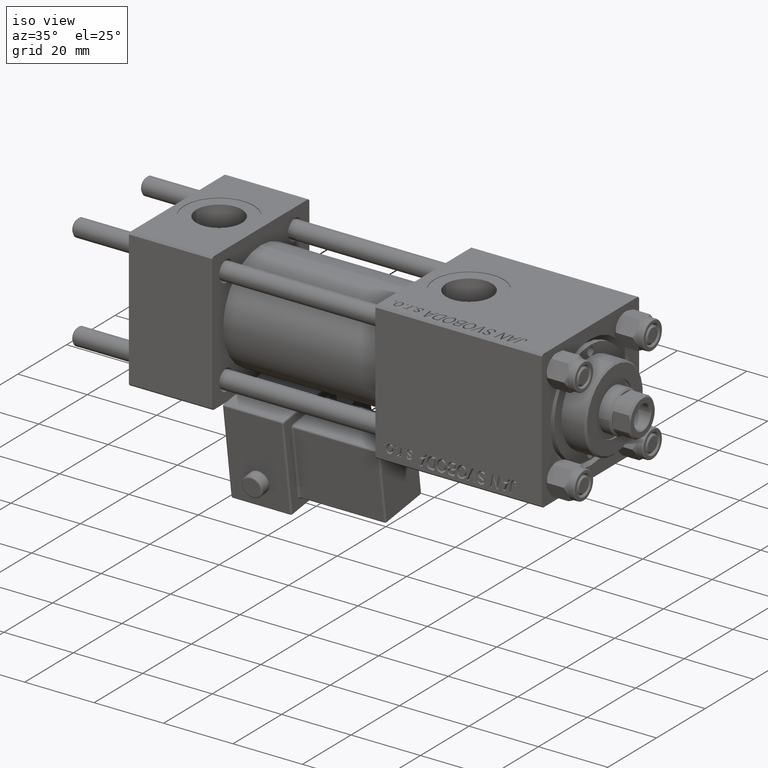
[diagram: clean part render]
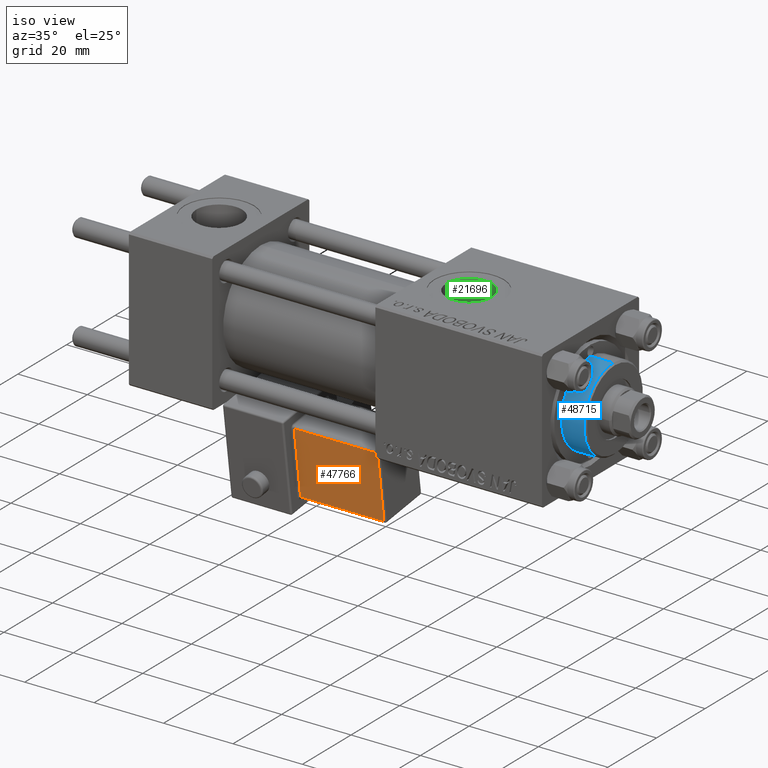
[diagram: same view with three faces highlighted in distinct colors, each labeled with its STEP entity id]
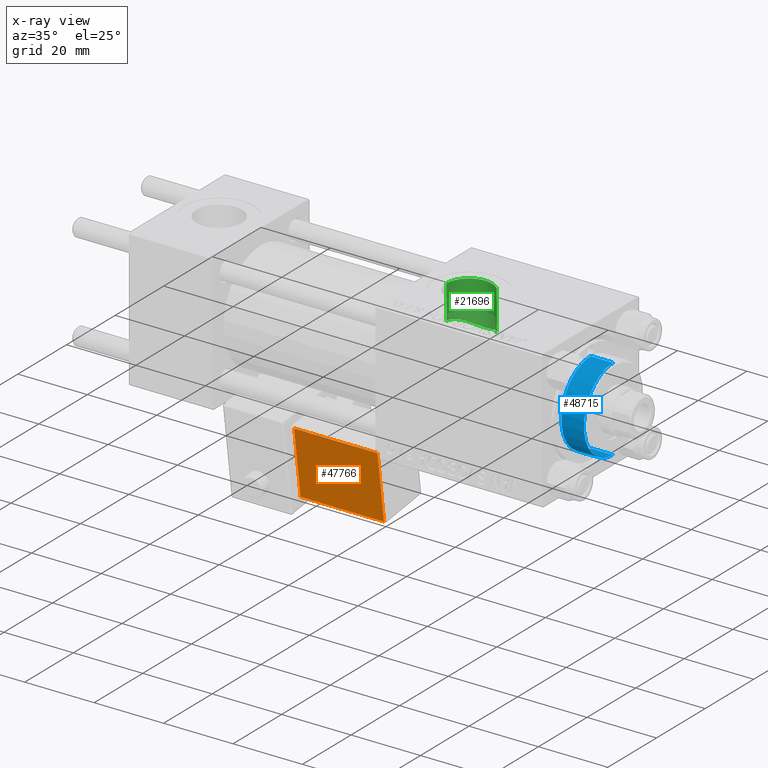
[diagram: x-ray of the same camera — body ghosted, the three highlighted faces saturated]
A machine part, iso view with three faces highlighted in distinct colors.
The next image is the same camera in x-ray (body ghosted, the three faces saturated) — at least one of them is partly hidden behind the body in this view.
Their STEP definitions:

[orange] entity #47766 — the highlighted planar face has unit normal (0, 0.9902, 0.1399).
#112 = DIRECTION ( 'NONE',  ( -1.734723475976807341E-16, 1.734723475976807341E-16, 1.000000000000000000 ) ) ;
#1661 = VERTEX_POINT ( 'NONE', #33195 ) ;
#2669 = LINE ( 'NONE', #19827, #42650 ) ;
#4822 = DIRECTION ( 'NONE',  ( 1.334402673828313339E-16, -1.734723475976807341E-16, -1.000000000000000000 ) ) ;
#7664 = VERTEX_POINT ( 'NONE', #28485 ) ;
#8300 = EDGE_CURVE ( 'NONE', #7664, #12023, #16814, .T. ) ;
#8929 = CARTESIAN_POINT ( 'NONE',  ( 9.250000000000005329, -29.25000000000000000, 1.999999999999998224 ) ) ;
#9965 = LINE ( 'NONE', #43979, #19017 ) ;
#11186 = EDGE_CURVE ( 'NONE', #12023, #1661, #2669, .T. ) ;
#12023 = VERTEX_POINT ( 'NONE', #20913 ) ;
#14294 = ORIENTED_EDGE ( 'NONE', *, *, #26819, .T. ) ;
#16814 = LINE ( 'NONE', #8929, #24453 ) ;
#19017 = VECTOR ( 'NONE', #40191, 1000.000000000000000 ) ;
#19827 = CARTESIAN_POINT ( 'NONE',  ( 33.75000000000000000, -29.25000000000000000, 2.500000000000002220 ) ) ;
#20821 = LINE ( 'NONE', #37466, #50051 ) ;
#20913 = CARTESIAN_POINT ( 'NONE',  ( 9.250000000000005329, -29.25000000000000000, 2.499999999999999556 ) ) ;
#20923 = CARTESIAN_POINT ( 'NONE',  ( 33.75000000000000000, -29.24999999999999645, 22.00000000000000000 ) ) ;
#24453 = VECTOR ( 'NONE', #4822, 1000.000000000000000 ) ;
#25284 = DIRECTION ( 'NONE',  ( 2.314819644696197507E-32, 1.000000000000000000, -1.734723475976807341E-16 ) ) ;
#26819 = EDGE_CURVE ( 'NONE', #1661, #49958, #20821, .T. ) ;
#28304 = FACE_OUTER_BOUND ( 'NONE', #50161, .T. ) ;
#28485 = CARTESIAN_POINT ( 'NONE',  ( 9.250000000000001776, -29.24999999999999645, 21.49999999999999645 ) ) ;
#29378 = DIRECTION ( 'NONE',  ( 0.000000000000000000, 1.734723475976807341E-16, 1.000000000000000000 ) ) ;
#32935 = PLANE ( 'NONE',  #40779 ) ;
#33195 = CARTESIAN_POINT ( 'NONE',  ( 33.24999999999999289, -29.25000000000000000, 2.500000000000003109 ) ) ;
#33969 = ORIENTED_EDGE ( 'NONE', *, *, #8300, .T. ) ;
#37466 = CARTESIAN_POINT ( 'NONE',  ( 33.24999999999999289, -29.24999999999999645, 22.00000000000000000 ) ) ;
#39204 = CARTESIAN_POINT ( 'NONE',  ( 33.24999999999999289, -29.24999999999999645, 21.50000000000000000 ) ) ;
#40191 = DIRECTION ( 'NONE',  ( -1.000000000000000000, 0.000000000000000000, -1.334402673828313339E-16 ) ) ;
#40302 = ORIENTED_EDGE ( 'NONE', *, *, #48446, .T. ) ;
#40779 = AXIS2_PLACEMENT_3D ( 'NONE', #20923, #25284, #29378 ) ;
#42404 = ORIENTED_EDGE ( 'NONE', *, *, #11186, .T. ) ;
#42650 = VECTOR ( 'NONE', #45423, 1000.000000000000000 ) ;
#43979 = CARTESIAN_POINT ( 'NONE',  ( 33.75000000000000000, -29.24999999999999645, 21.50000000000000000 ) ) ;
#45423 = DIRECTION ( 'NONE',  ( 1.000000000000000000, -0.000000000000000000, 1.334402673828313339E-16 ) ) ;
#47766 = ADVANCED_FACE ( 'NONE', ( #28304 ), #32935, .F. ) ;
#48446 = EDGE_CURVE ( 'NONE', #49958, #7664, #9965, .T. ) ;
#49958 = VERTEX_POINT ( 'NONE', #39204 ) ;
#50051 = VECTOR ( 'NONE', #112, 1000.000000000000000 ) ;
#50161 = EDGE_LOOP ( 'NONE', ( #33969, #42404, #14294, #40302 ) ) ;

[blue] entity #48715 — the highlighted cylindrical surface (partial cylindrical patch) has radius 12 mm, axis along (-1, -0, 0).
#346 = DIRECTION ( 'NONE',  ( -0.000000000000000000, -0.000000000000000000, -1.000000000000000000 ) ) ;
#428 = CIRCLE ( 'NONE', #1303, 12.00000000000000178 ) ;
#1303 = AXIS2_PLACEMENT_3D ( 'NONE', #44133, #6818, #2720 ) ;
#2326 = CARTESIAN_POINT ( 'NONE',  ( -12.00000000000000178, 0.000000000000000000, 35.19999999999999574 ) ) ;
#2720 = DIRECTION ( 'NONE',  ( 1.000000000000000000, 0.000000000000000000, 0.000000000000000000 ) ) ;
#4409 = AXIS2_PLACEMENT_3D ( 'NONE', #48252, #11757, #10955 ) ;
#5266 = CARTESIAN_POINT ( 'NONE',  ( 12.00000000000000178, 0.000000000000000000, 28.69999999999999929 ) ) ;
#6518 = ORIENTED_EDGE ( 'NONE', *, *, #12846, .T. ) ;
#6818 = DIRECTION ( 'NONE',  ( 0.000000000000000000, 0.000000000000000000, -1.000000000000000000 ) ) ;
#7415 = CARTESIAN_POINT ( 'NONE',  ( 12.00000000000000178, 1.469576158976824144E-15, 35.70000000000000284 ) ) ;
#8210 = LINE ( 'NONE', #7415, #52621 ) ;
#10955 = DIRECTION ( 'NONE',  ( 1.000000000000000000, 0.000000000000000000, 0.000000000000000000 ) ) ;
#11757 = DIRECTION ( 'NONE',  ( 0.000000000000000000, 0.000000000000000000, 1.000000000000000000 ) ) ;
#11861 = LINE ( 'NONE', #20552, #48378 ) ;
#12846 = EDGE_CURVE ( 'NONE', #18746, #25164, #45327, .T. ) ;
#18746 = VERTEX_POINT ( 'NONE', #50673 ) ;
#19229 = ORIENTED_EDGE ( 'NONE', *, *, #31679, .T. ) ;
#20552 = CARTESIAN_POINT ( 'NONE',  ( -12.00000000000000178, 0.000000000000000000, 35.70000000000000284 ) ) ;
#22533 = AXIS2_PLACEMENT_3D ( 'NONE', #51496, #346, #37965 ) ;
#24112 = DIRECTION ( 'NONE',  ( -0.000000000000000000, -0.000000000000000000, -1.000000000000000000 ) ) ;
#24168 = ORIENTED_EDGE ( 'NONE', *, *, #36217, .T. ) ;
#25164 = VERTEX_POINT ( 'NONE', #5266 ) ;
#26734 = VERTEX_POINT ( 'NONE', #28320 ) ;
#28029 = ORIENTED_EDGE ( 'NONE', *, *, #35333, .F. ) ;
#28320 = CARTESIAN_POINT ( 'NONE',  ( 12.00000000000000178, 1.469576158976824144E-15, 35.19999999999999574 ) ) ;
#29522 = FACE_OUTER_BOUND ( 'NONE', #47147, .T. ) ;
#31679 = EDGE_CURVE ( 'NONE', #36697, #18746, #11861, .T. ) ;
#35333 = EDGE_CURVE ( 'NONE', #26734, #25164, #8210, .T. ) ;
#36217 = EDGE_CURVE ( 'NONE', #26734, #36697, #428, .T. ) ;
#36697 = VERTEX_POINT ( 'NONE', #2326 ) ;
#37700 = CYLINDRICAL_SURFACE ( 'NONE', #22533, 12.00000000000000178 ) ;
#37965 = DIRECTION ( 'NONE',  ( -1.000000000000000000, 0.000000000000000000, 0.000000000000000000 ) ) ;
#40920 = DIRECTION ( 'NONE',  ( -0.000000000000000000, -0.000000000000000000, -1.000000000000000000 ) ) ;
#44133 = CARTESIAN_POINT ( 'NONE',  ( 0.000000000000000000, 0.000000000000000000, 35.19999999999999574 ) ) ;
#45327 = CIRCLE ( 'NONE', #4409, 12.00000000000000178 ) ;
#47147 = EDGE_LOOP ( 'NONE', ( #28029, #24168, #19229, #6518 ) ) ;
#48252 = CARTESIAN_POINT ( 'NONE',  ( 0.000000000000000000, 0.000000000000000000, 28.69999999999999929 ) ) ;
#48378 = VECTOR ( 'NONE', #24112, 1000.000000000000000 ) ;
#48715 = ADVANCED_FACE ( 'NONE', ( #29522 ), #37700, .T. ) ;
#50673 = CARTESIAN_POINT ( 'NONE',  ( -12.00000000000000178, 0.000000000000000000, 28.69999999999999929 ) ) ;
#51496 = CARTESIAN_POINT ( 'NONE',  ( 0.000000000000000000, 0.000000000000000000, 35.70000000000000284 ) ) ;
#52621 = VECTOR ( 'NONE', #40920, 1000.000000000000000 ) ;

[green] entity #21696 — the highlighted cylindrical surface (edge-blend (fillet) strip) has radius 6.58 mm, axis along (0, 0, -1).
#322 = CARTESIAN_POINT ( 'NONE',  ( 87.89770756635016369, 5.314995828701263747, 8.474223888701592600 ) ) ;
#650 = DIRECTION ( 'NONE',  ( 0.000000000000000000, 0.000000000000000000, -1.000000000000000000 ) ) ;
#981 = EDGE_CURVE ( 'NONE', #23998, #52664, #15490, .T. ) ;
#1151 = CARTESIAN_POINT ( 'NONE',  ( 81.14578869086805923, 5.940907422896437140, 8.047130836318883595 ) ) ;
#1463 = CARTESIAN_POINT ( 'NONE',  ( 77.41999999999846693, -1.734723475976806897E-15, 42.80000000000000426 ) ) ;
#2083 = CARTESIAN_POINT ( 'NONE',  ( 77.78548192684070273, 2.171457386535522005, 9.763238620524230527 ) ) ;
#2303 = CARTESIAN_POINT ( 'NONE',  ( 90.58000000000154728, 0.6482402319151120418, 15.00000000000000000 ) ) ;
#2581 = DIRECTION ( 'NONE',  ( 0.000000000000000000, 0.000000000000000000, -1.000000000000000000 ) ) ;
#2741 = DIRECTION ( 'NONE',  ( -1.000000000000000000, 0.000000000000000000, 0.000000000000000000 ) ) ;
#3272 = DIRECTION ( 'NONE',  ( 0.000000000000000000, 0.000000000000000000, -1.000000000000000000 ) ) ;
#3938 = VERTEX_POINT ( 'NONE', #28808 ) ;
#4415 = CARTESIAN_POINT ( 'NONE',  ( 89.47113332388794049, 3.675278640241169903, 9.305982037814699126 ) ) ;
#4960 = CARTESIAN_POINT ( 'NONE',  ( 90.03413885016284723, 2.653169395164264976, 9.648548488114556676 ) ) ;
#5178 = LINE ( 'NONE', #47380, #47568 ) ;
#6371 = AXIS2_PLACEMENT_3D ( 'NONE', #49029, #3272, #2741 ) ;
#6583 = EDGE_CURVE ( 'NONE', #17008, #21552, #43696, .T. ) ;
#6707 = CARTESIAN_POINT ( 'NONE',  ( 77.61336014068284328, 1.596001079245348286, 9.873755022540338544 ) ) ;
#10218 = ORIENTED_EDGE ( 'NONE', *, *, #981, .T. ) ;
#10769 = EDGE_CURVE ( 'NONE', #12560, #3938, #22633, .T. ) ;
#10807 = CARTESIAN_POINT ( 'NONE',  ( 77.41999999999846693, 1.225496641077837722E-15, 9.999999999999998224 ) ) ;
#11347 = CARTESIAN_POINT ( 'NONE',  ( 77.46686778345895164, 0.8095015862947814167, 9.969213526992616536 ) ) ;
#11477 = CYLINDRICAL_SURFACE ( 'NONE', #6371, 6.580000000001542837 ) ;
#11592 = LINE ( 'NONE', #27388, #27212 ) ;
#11633 = CARTESIAN_POINT ( 'NONE',  ( 77.41999999999846693, 1.225496641077837722E-15, 9.999999999999998224 ) ) ;
#12560 = VERTEX_POINT ( 'NONE', #28171 ) ;
#12872 = CARTESIAN_POINT ( 'NONE',  ( 90.18394818542550695, 2.284047792793505671, 9.743556464968632369 ) ) ;
#12876 = ORIENTED_EDGE ( 'NONE', *, *, #26873, .T. ) ;
#13423 = CARTESIAN_POINT ( 'NONE',  ( 87.25879362717218157, 5.729011173614271257, 8.200005008995757905 ) ) ;
#15157 = CARTESIAN_POINT ( 'NONE',  ( 80.16598197494323585, 5.361182684198095849, 8.446034601453003887 ) ) ;
#15490 = B_SPLINE_CURVE_WITH_KNOTS ( 'NONE', 3,
 ( #10807, #36144, #52726, #11347, #39426, #27416, #6707, #23313, #2083, #18702, #35343, #51922, #19239, #47837, #27153, #35882, #52464, #15157, #29777, #1151, #30051, #42552, #53261, #21861, #25672, #50991, #29496, #28221, #42022, #33855, #13423, #322, #17503, #50441, #46364, #4415, #50170, #4960, #12872, #21038 ),
 .UNSPECIFIED., .F., .F.,
 ( 4, 2, 2, 2, 2, 2, 2, 2, 2, 2, 2, 2, 2, 2, 2, 2, 2, 2, 2, 4 ),
 ( 0.01932465968159079173, 0.01992623976258372023, 0.02052781984357664874, 0.02112939992456958072, 0.02173098000556250922, 0.02293414016754835236, 0.02353572024854126005, 0.02413730032953417121, 0.02534046049151999352, 0.02654362065350581931, 0.02774678081549164163, 0.02894994097747746048, 0.03015310113946328627, 0.03135626130144910512, 0.03255942146343493437, 0.03376258162542075669, 0.03496574178740657901, 0.03616890194939239439, 0.03737206211137822365, 0.03857522227336403903 ),
 .UNSPECIFIED. ) ;
#17008 = VERTEX_POINT ( 'NONE', #51246 ) ;
#17503 = CARTESIAN_POINT ( 'NONE',  ( 88.19646942446757976, 5.082480376344788553, 8.617202020241876426 ) ) ;
#17556 = LINE ( 'NONE', #1463, #24811 ) ;
#18250 = DIRECTION ( 'NONE',  ( 0.000000000000000000, 0.000000000000000000, -1.000000000000000000 ) ) ;
#18702 = CARTESIAN_POINT ( 'NONE',  ( 77.99778063450312970, 2.725070813951062210, 9.629029610001953898 ) ) ;
#19239 = CARTESIAN_POINT ( 'NONE',  ( 78.57832010883362273, 3.733451394700813442, 9.278448749827713726 ) ) ;
#20501 = EDGE_CURVE ( 'NONE', #3938, #21552, #11592, .T. ) ;
#21038 = CARTESIAN_POINT ( 'NONE',  ( 90.30000000000001137, 1.899052395280416805, 9.818024241158690657 ) ) ;
#21552 = VERTEX_POINT ( 'NONE', #44560 ) ;
#21696 = ADVANCED_FACE ( 'NONE', ( #47244 ), #11477, .F. ) ;
#21861 = CARTESIAN_POINT ( 'NONE',  ( 83.42309077254218153, 6.566894182961647175, 7.542015064089320653 ) ) ;
#22383 = DIRECTION ( 'NONE',  ( -0.000000000000000000, -0.000000000000000000, -1.000000000000000000 ) ) ;
#22633 = CIRCLE ( 'NONE', #43510, 6.580000000001542837 ) ;
#23313 = CARTESIAN_POINT ( 'NONE',  ( 77.72206397560209723, 1.980885511870404958, 9.803792647692771922 ) ) ;
#23823 = CARTESIAN_POINT ( 'NONE',  ( 90.30000000000001137, 1.899052395280416805, 14.87930105885285670 ) ) ;
#23998 = VERTEX_POINT ( 'NONE', #11633 ) ;
#24811 = VECTOR ( 'NONE', #650, 1000.000000000000000 ) ;
#25672 = CARTESIAN_POINT ( 'NONE',  ( 83.83547327919450254, 6.590311166413664878, 7.521181861579123051 ) ) ;
#26873 = EDGE_CURVE ( 'NONE', #12560, #23998, #17556, .T. ) ;
#27153 = CARTESIAN_POINT ( 'NONE',  ( 78.92452899478391259, 4.191895100649813521, 9.080368974035573970 ) ) ;
#27212 = VECTOR ( 'NONE', #2581, 1000.000000000000000 ) ;
#27388 = CARTESIAN_POINT ( 'NONE',  ( 90.58000000000154728, -9.289058821376597120E-16, 42.80000000000000426 ) ) ;
#27416 = CARTESIAN_POINT ( 'NONE',  ( 77.56787295357401035, 1.401479312405162991, 9.903286656888813155 ) ) ;
#27639 = CARTESIAN_POINT ( 'NONE',  ( 90.48627106246551932, 1.281108574220367835, 14.95816952780117504 ) ) ;
#28171 = CARTESIAN_POINT ( 'NONE',  ( 77.41999999999846693, -1.734723475976806897E-15, 19.80000000000000071 ) ) ;
#28221 = CARTESIAN_POINT ( 'NONE',  ( 85.82542148765864454, 6.334517411161552758, 7.738665973506989815 ) ) ;
#28808 = CARTESIAN_POINT ( 'NONE',  ( 90.58000000000154728, -9.289058821376599092E-16, 19.80000000000000071 ) ) ;
#29496 = CARTESIAN_POINT ( 'NONE',  ( 85.04005595195334877, 6.509727955661519516, 7.591870904138360743 ) ) ;
#29777 = CARTESIAN_POINT ( 'NONE',  ( 80.48063172447184854, 5.572696846752806188, 8.306367771682850787 ) ) ;
#30051 = CARTESIAN_POINT ( 'NONE',  ( 81.49663029925129365, 6.097981844537015306, 7.927249195841285179 ) ) ;
#33728 = EDGE_CURVE ( 'NONE', #17008, #52664, #5178, .T. ) ;
#33855 = CARTESIAN_POINT ( 'NONE',  ( 86.91556528692413508, 5.911601028564673399, 8.067779981975611747 ) ) ;
#34340 = EDGE_LOOP ( 'NONE', ( #34995, #48564, #12876, #10218, #42343, #34731 ) ) ;
#34731 = ORIENTED_EDGE ( 'NONE', *, *, #6583, .T. ) ;
#34995 = ORIENTED_EDGE ( 'NONE', *, *, #20501, .F. ) ;
#35343 = CARTESIAN_POINT ( 'NONE',  ( 78.16952377845269950, 3.074422462291888092, 9.522197844733907957 ) ) ;
#35882 = CARTESIAN_POINT ( 'NONE',  ( 79.29945075163941226, 4.620086428005418355, 8.874409408838401347 ) ) ;
#36144 = CARTESIAN_POINT ( 'NONE',  ( 77.41999999999845272, 0.2033100982330938999, 10.00000000000000178 ) ) ;
#39426 = CARTESIAN_POINT ( 'NONE',  ( 77.49462714226881133, 1.008229431408755206, 9.951015238921746331 ) ) ;
#40851 = CARTESIAN_POINT ( 'NONE',  ( 90.30000000000001137, 1.899052395280416805, 9.818024241158690657 ) ) ;
#42022 = CARTESIAN_POINT ( 'NONE',  ( 86.19913985023920588, 6.213801701240062592, 7.837395548022279002 ) ) ;
#42343 = ORIENTED_EDGE ( 'NONE', *, *, #33728, .F. ) ;
#42552 = CARTESIAN_POINT ( 'NONE',  ( 82.24366288463141927, 6.353544079654159127, 7.723932937122186537 ) ) ;
#43510 = AXIS2_PLACEMENT_3D ( 'NONE', #48230, #22383, #47437 ) ;
#43696 = B_SPLINE_CURVE_WITH_KNOTS ( 'NONE', 3,
 ( #23823, #27639, #2303, #48327 ),
 .UNSPECIFIED., .F., .F.,
 ( 4, 4 ),
 ( 0.000000000000000000, 0.001923267627926015643 ),
 .UNSPECIFIED. ) ;
#44560 = CARTESIAN_POINT ( 'NONE',  ( 90.58000000000154728, 1.836897619300433381E-15, 15.00000000000000000 ) ) ;
#46364 = CARTESIAN_POINT ( 'NONE',  ( 89.01137633077168232, 4.281013922256128978, 9.043334261708560362 ) ) ;
#47244 = FACE_OUTER_BOUND ( 'NONE', #34340, .T. ) ;
#47380 = CARTESIAN_POINT ( 'NONE',  ( 90.30000000000001137, 1.899052395280416805, 42.80000000000000426 ) ) ;
#47437 = DIRECTION ( 'NONE',  ( 1.000000000000000000, 0.000000000000000000, 0.000000000000000000 ) ) ;
#47568 = VECTOR ( 'NONE', #18250, 1000.000000000000000 ) ;
#47837 = CARTESIAN_POINT ( 'NONE',  ( 78.80526461953910200, 4.043265572017154419, 9.147692279144168381 ) ) ;
#48230 = CARTESIAN_POINT ( 'NONE',  ( 84.00000000000000000, -1.734723475976806897E-15, 19.80000000000000071 ) ) ;
#48327 = CARTESIAN_POINT ( 'NONE',  ( 90.58000000000154728, 1.836897619300433381E-15, 15.00000000000000000 ) ) ;
#48564 = ORIENTED_EDGE ( 'NONE', *, *, #10769, .F. ) ;
#49029 = CARTESIAN_POINT ( 'NONE',  ( 84.00000000000000000, -1.734723475976806897E-15, 42.80000000000000426 ) ) ;
#50170 = CARTESIAN_POINT ( 'NONE',  ( 89.67635654325876260, 3.350987301719415612, 9.428927821902620465 ) ) ;
#50441 = CARTESIAN_POINT ( 'NONE',  ( 88.75576429004956935, 4.563405353889827154, 8.902983152274309475 ) ) ;
#50991 = CARTESIAN_POINT ( 'NONE',  ( 84.64208553656848721, 6.561020993393114509, 7.546746410828856000 ) ) ;
#51246 = CARTESIAN_POINT ( 'NONE',  ( 90.30000000000001137, 1.899052395280416805, 14.87930105885285670 ) ) ;
#51922 = CARTESIAN_POINT ( 'NONE',  ( 78.47036046458491398, 3.571696826447866790, 9.342058825423189106 ) ) ;
#52464 = CARTESIAN_POINT ( 'NONE',  ( 79.57202415259416739, 4.882110597333562119, 8.731710965079535924 ) ) ;
#52664 = VERTEX_POINT ( 'NONE', #40851 ) ;
#52726 = CARTESIAN_POINT ( 'NONE',  ( 77.42954415386088840, 0.4077000747566019712, 9.993712614140443762 ) ) ;
#53261 = CARTESIAN_POINT ( 'NONE',  ( 82.63059524258804345, 6.448383834521553837, 7.643587924518619126 ) ) ;